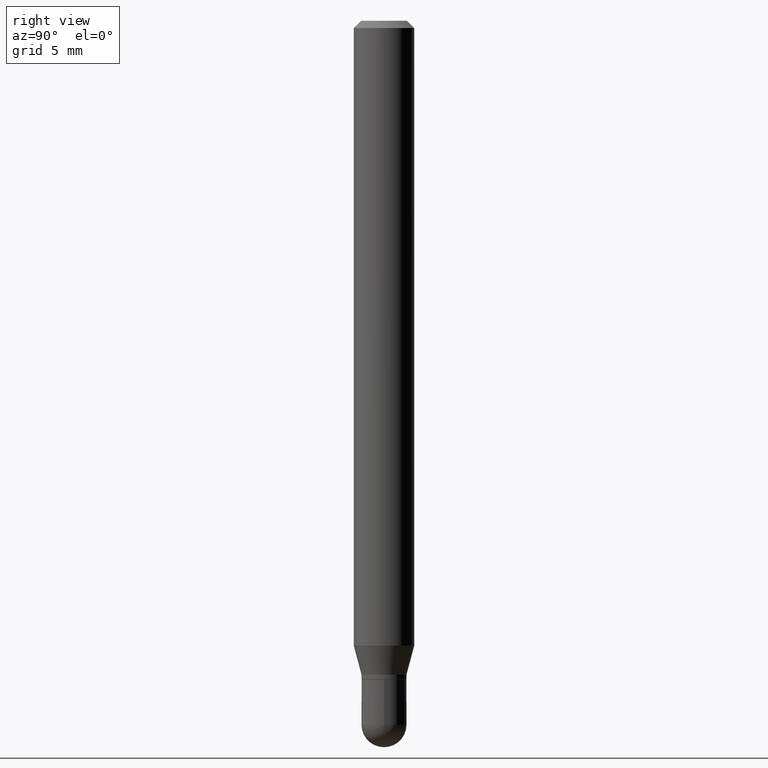
[diagram: clean part render]
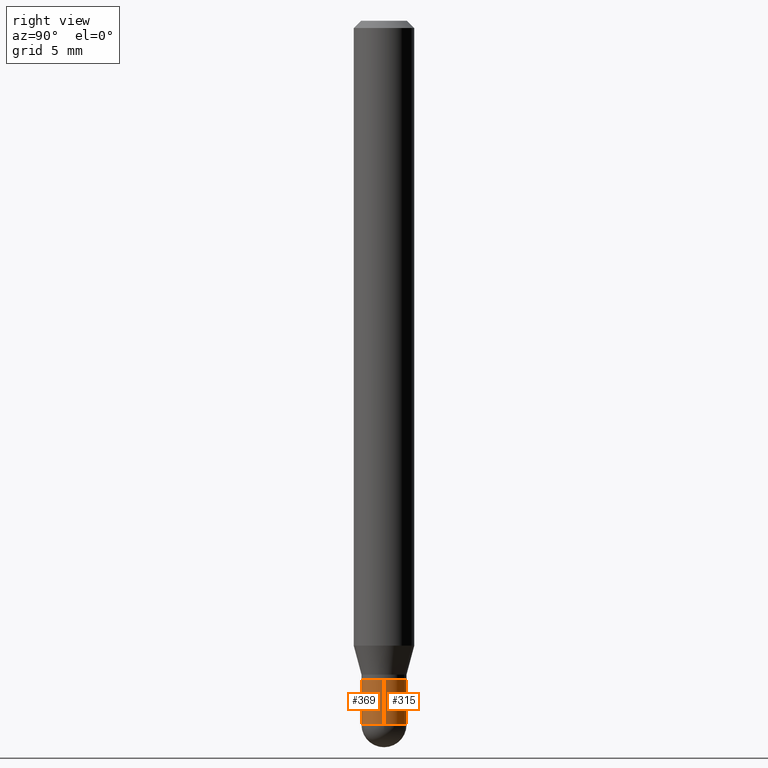
[diagram: same view with one multi-face feature highlighted, each face labeled with its STEP entity id]
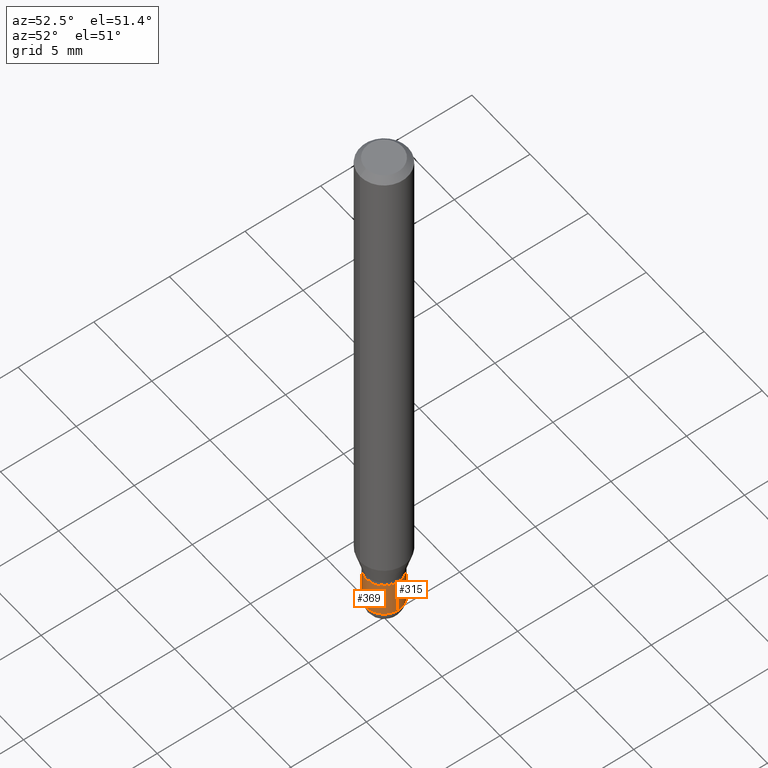
[diagram: same view with one multi-face feature highlighted, each face labeled with its STEP entity id]
A machine part, right view. The highlighted faces form ONE feature: a constant-radius fillet chain: 2 tangent blend faces with common blend radius 1.1811 mm. The faces share edges in the B-rep.
A second angle (auxiliary view) of the same feature is appended — it is thin or edge-on in the first view.
Their STEP definitions:
[1] entity #369 (Cylinder):
#7 = DIRECTION ( 'NONE',  ( 1.000000000000000000, -6.982962677686260400E-15, 0.000000000000000000 ) ) ;
#20 = CARTESIAN_POINT ( 'NONE',  ( -0.04649999999999999967, -4.581239001289149837E-15, -1.360000000000000320 ) ) ;
#28 = VECTOR ( 'NONE', #33, 39.37007874015748143 ) ;
#33 = DIRECTION ( 'NONE',  ( -2.445468806185136877E-29, 3.491481338843145188E-15, 1.000000000000000000 ) ) ;
#44 = DIRECTION ( 'NONE',  ( -2.445468806185136877E-29, 3.491481338843145188E-15, 1.000000000000000000 ) ) ;
#66 = FACE_OUTER_BOUND ( 'NONE', #67, .T. ) ;
#67 = EDGE_LOOP ( 'NONE', ( #426, #90, #233, #124, #336 ) ) ;
#71 = AXIS2_PLACEMENT_3D ( 'NONE', #195, #511, #119 ) ;
#85 = CARTESIAN_POINT ( 'NONE',  ( 3.554488909790096218E-29, -5.074868126008512823E-15, -1.453500000000000236 ) ) ;
#90 = ORIENTED_EDGE ( 'NONE', *, *, #146, .T. ) ;
#100 = DIRECTION ( 'NONE',  ( 1.000000000000000000, -6.982962677686260400E-15, 0.000000000000000000 ) ) ;
#102 = DIRECTION ( 'NONE',  ( -2.445468806185136597E-29, 3.491481338843145583E-15, 1.000000000000000000 ) ) ;
#112 = CARTESIAN_POINT ( 'NONE',  ( 0.04649999999999999967, -3.247077645124114474E-16, 2.267422200745110326E-30 ) ) ;
#119 = DIRECTION ( 'NONE',  ( 1.000000000000000000, -6.982962677686260400E-15, 0.000000000000000000 ) ) ;
#122 = CIRCLE ( 'NONE', #138, 0.04649999999999999967 ) ;
#124 = ORIENTED_EDGE ( 'NONE', *, *, #484, .T. ) ;
#138 = AXIS2_PLACEMENT_3D ( 'NONE', #452, #169, #100 ) ;
#146 = EDGE_CURVE ( 'NONE', #446, #208, #365, .T. ) ;
#154 = LINE ( 'NONE', #112, #378 ) ;
#155 = DIRECTION ( 'NONE',  ( -2.445468806185136597E-29, 3.491481338843145583E-15, 1.000000000000000000 ) ) ;
#169 = DIRECTION ( 'NONE',  ( -2.445468806185136597E-29, 3.491481338843145583E-15, 1.000000000000000000 ) ) ;
#178 = CARTESIAN_POINT ( 'NONE',  ( -0.04649999999999999967, 3.304023721284465841E-16, -2.287304816968531530E-30 ) ) ;
#182 = EDGE_CURVE ( 'NONE', #208, #312, #343, .T. ) ;
#195 = CARTESIAN_POINT ( 'NONE',  ( 3.554488909790096218E-29, -5.074868126008512823E-15, -1.453500000000000236 ) ) ;
#208 = VERTEX_POINT ( 'NONE', #404 ) ;
#227 = LINE ( 'NONE', #178, #28 ) ;
#233 = ORIENTED_EDGE ( 'NONE', *, *, #182, .T. ) ;
#241 = EDGE_CURVE ( 'NONE', #448, #450, #122, .T. ) ;
#257 = CARTESIAN_POINT ( 'NONE',  ( 0.04649999999999999967, -5.236349137930007031E-15, -1.453500000000000236 ) ) ;
#268 = DIRECTION ( 'NONE',  ( 1.000000000000000000, -6.982962677686267499E-15, 4.876176775795936353E-29 ) ) ;
#312 = VERTEX_POINT ( 'NONE', #257 ) ;
#336 = ORIENTED_EDGE ( 'NONE', *, *, #241, .F. ) ;
#343 = CIRCLE ( 'NONE', #71, 0.04649999999999999967 ) ;
#365 = CIRCLE ( 'NONE', #411, 0.04649999999999999967 ) ;
#369 = ADVANCED_FACE ( 'NONE', ( #66 ), #454, .T. ) ;
#378 = VECTOR ( 'NONE', #44, 39.37007874015748143 ) ;
#380 = CARTESIAN_POINT ( 'NONE',  ( -0.04649999999999999967, -4.581239001289149837E-15, -1.453500000000000236 ) ) ;
#399 = EDGE_CURVE ( 'NONE', #446, #448, #227, .T. ) ;
#400 = AXIS2_PLACEMENT_3D ( 'NONE', #461, #102, #268 ) ;
#404 = CARTESIAN_POINT ( 'NONE',  ( -3.304023721284108388E-16, -0.04650000000000505812, -1.453500000000000014 ) ) ;
#411 = AXIS2_PLACEMENT_3D ( 'NONE', #85, #155, #7 ) ;
#426 = ORIENTED_EDGE ( 'NONE', *, *, #399, .F. ) ;
#446 = VERTEX_POINT ( 'NONE', #380 ) ;
#448 = VERTEX_POINT ( 'NONE', #20 ) ;
#450 = VERTEX_POINT ( 'NONE', #476 ) ;
#452 = CARTESIAN_POINT ( 'NONE',  ( 3.325837576411786624E-29, -4.748414620826679034E-15, -1.360000000000000320 ) ) ;
#454 = CYLINDRICAL_SURFACE ( 'NONE', #400, 0.04649999999999999967 ) ;
#461 = CARTESIAN_POINT ( 'NONE',  ( 0.000000000000000000, 0.000000000000000000, 0.000000000000000000 ) ) ;
#476 = CARTESIAN_POINT ( 'NONE',  ( 0.04649999999999999967, -5.073122385339090530E-15, -1.360000000000000320 ) ) ;
#484 = EDGE_CURVE ( 'NONE', #312, #450, #154, .T. ) ;
#511 = DIRECTION ( 'NONE',  ( -2.445468806185136597E-29, 3.491481338843145583E-15, 1.000000000000000000 ) ) ;
[2] entity #315 (Cylinder):
#13 = ORIENTED_EDGE ( 'NONE', *, *, #207, .T. ) ;
#19 = DIRECTION ( 'NONE',  ( -2.445468806185136597E-29, 3.491481338843145583E-15, 1.000000000000000000 ) ) ;
#20 = CARTESIAN_POINT ( 'NONE',  ( -0.04649999999999999967, -4.581239001289149837E-15, -1.360000000000000320 ) ) ;
#28 = VECTOR ( 'NONE', #33, 39.37007874015748143 ) ;
#30 = DIRECTION ( 'NONE',  ( -2.445468806185136597E-29, 3.491481338843145583E-15, 1.000000000000000000 ) ) ;
#33 = DIRECTION ( 'NONE',  ( -2.445468806185136877E-29, 3.491481338843145188E-15, 1.000000000000000000 ) ) ;
#35 = DIRECTION ( 'NONE',  ( -2.445468806185136597E-29, 3.491481338843145583E-15, 1.000000000000000000 ) ) ;
#44 = DIRECTION ( 'NONE',  ( -2.445468806185136877E-29, 3.491481338843145188E-15, 1.000000000000000000 ) ) ;
#48 = CIRCLE ( 'NONE', #205, 0.04649999999999999967 ) ;
#61 = CYLINDRICAL_SURFACE ( 'NONE', #162, 0.04649999999999999967 ) ;
#69 = CARTESIAN_POINT ( 'NONE',  ( 3.554488909790096218E-29, -5.074868126008512823E-15, -1.453500000000000236 ) ) ;
#94 = VERTEX_POINT ( 'NONE', #370 ) ;
#112 = CARTESIAN_POINT ( 'NONE',  ( 0.04649999999999999967, -3.247077645124114474E-16, 2.267422200745110326E-30 ) ) ;
#143 = CARTESIAN_POINT ( 'NONE',  ( 3.325837576411786624E-29, -4.748414620826679034E-15, -1.360000000000000320 ) ) ;
#154 = LINE ( 'NONE', #112, #378 ) ;
#156 = CARTESIAN_POINT ( 'NONE',  ( 3.554488909790096218E-29, -5.074868126008512823E-15, -1.453500000000000236 ) ) ;
#162 = AXIS2_PLACEMENT_3D ( 'NONE', #280, #19, #354 ) ;
#168 = CIRCLE ( 'NONE', #324, 0.04649999999999999967 ) ;
#178 = CARTESIAN_POINT ( 'NONE',  ( -0.04649999999999999967, 3.304023721284465841E-16, -2.287304816968531530E-30 ) ) ;
#205 = AXIS2_PLACEMENT_3D ( 'NONE', #143, #30, #501 ) ;
#207 = EDGE_CURVE ( 'NONE', #94, #446, #486, .T. ) ;
#223 = DIRECTION ( 'NONE',  ( 1.000000000000000000, -6.982962677686260400E-15, 0.000000000000000000 ) ) ;
#227 = LINE ( 'NONE', #178, #28 ) ;
#228 = EDGE_LOOP ( 'NONE', ( #13, #506, #375, #407, #269 ) ) ;
#257 = CARTESIAN_POINT ( 'NONE',  ( 0.04649999999999999967, -5.236349137930007031E-15, -1.453500000000000236 ) ) ;
#269 = ORIENTED_EDGE ( 'NONE', *, *, #334, .T. ) ;
#280 = CARTESIAN_POINT ( 'NONE',  ( 0.000000000000000000, 0.000000000000000000, 0.000000000000000000 ) ) ;
#301 = EDGE_CURVE ( 'NONE', #450, #448, #48, .T. ) ;
#312 = VERTEX_POINT ( 'NONE', #257 ) ;
#315 = ADVANCED_FACE ( 'NONE', ( #420 ), #61, .T. ) ;
#320 = DIRECTION ( 'NONE',  ( -2.445468806185136597E-29, 3.491481338843145583E-15, 1.000000000000000000 ) ) ;
#324 = AXIS2_PLACEMENT_3D ( 'NONE', #69, #35, #223 ) ;
#334 = EDGE_CURVE ( 'NONE', #312, #94, #168, .T. ) ;
#354 = DIRECTION ( 'NONE',  ( 1.000000000000000000, -6.982962677686267499E-15, 4.876176775795936353E-29 ) ) ;
#370 = CARTESIAN_POINT ( 'NONE',  ( 3.247077645124467489E-16, 0.04649999999999489958, -1.453500000000000458 ) ) ;
#375 = ORIENTED_EDGE ( 'NONE', *, *, #301, .F. ) ;
#378 = VECTOR ( 'NONE', #44, 39.37007874015748143 ) ;
#380 = CARTESIAN_POINT ( 'NONE',  ( -0.04649999999999999967, -4.581239001289149837E-15, -1.453500000000000236 ) ) ;
#399 = EDGE_CURVE ( 'NONE', #446, #448, #227, .T. ) ;
#407 = ORIENTED_EDGE ( 'NONE', *, *, #484, .F. ) ;
#420 = FACE_OUTER_BOUND ( 'NONE', #228, .T. ) ;
#446 = VERTEX_POINT ( 'NONE', #380 ) ;
#448 = VERTEX_POINT ( 'NONE', #20 ) ;
#450 = VERTEX_POINT ( 'NONE', #476 ) ;
#466 = AXIS2_PLACEMENT_3D ( 'NONE', #156, #320, #473 ) ;
#473 = DIRECTION ( 'NONE',  ( 1.000000000000000000, -6.982962677686260400E-15, 0.000000000000000000 ) ) ;
#476 = CARTESIAN_POINT ( 'NONE',  ( 0.04649999999999999967, -5.073122385339090530E-15, -1.360000000000000320 ) ) ;
#484 = EDGE_CURVE ( 'NONE', #312, #450, #154, .T. ) ;
#486 = CIRCLE ( 'NONE', #466, 0.04649999999999999967 ) ;
#501 = DIRECTION ( 'NONE',  ( 1.000000000000000000, -6.982962677686260400E-15, 0.000000000000000000 ) ) ;
#506 = ORIENTED_EDGE ( 'NONE', *, *, #399, .T. ) ;